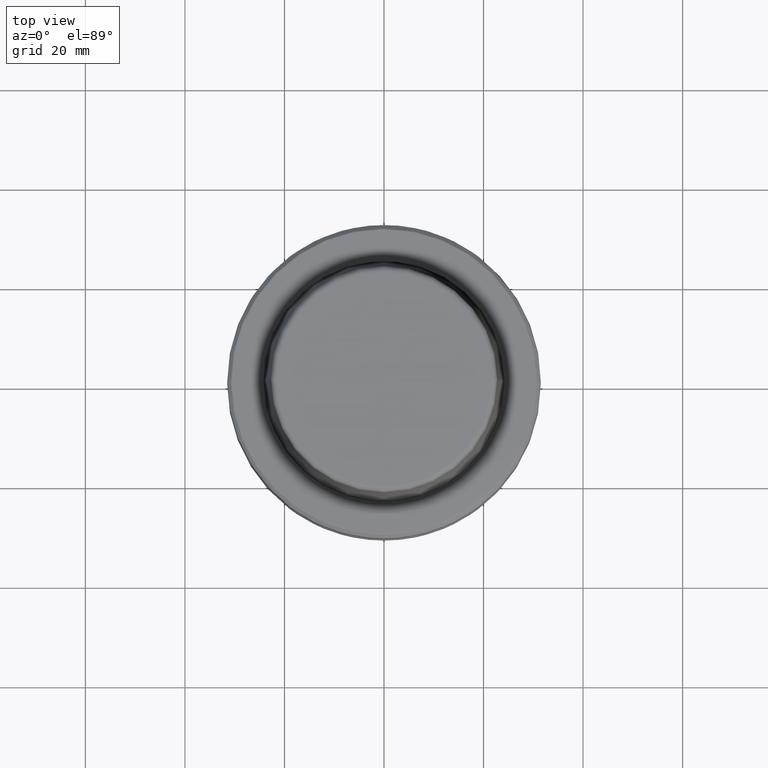
[diagram: clean part render]
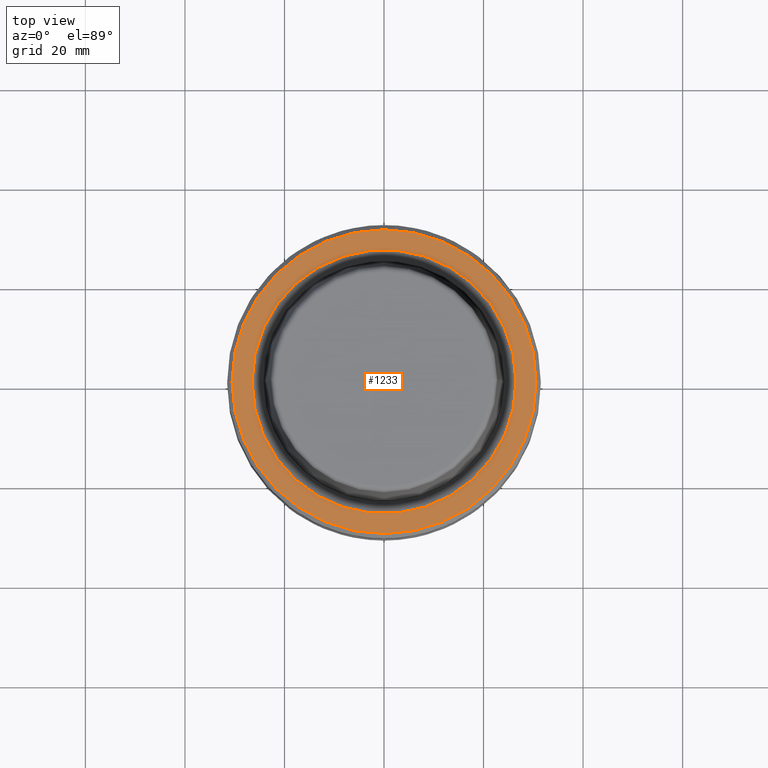
[diagram: same view with one face highlighted and labeled with its STEP entity id]
A machine part, top view. The second image highlights one B-rep face of the part: STEP entity #1233.
In plain terms, the highlighted planar face has unit normal (0, 0, -1).
Its self-contained STEP definition (entity closure, byte-faithful):
#36 = DIRECTION ( 'NONE',  ( 1.000000000000000000, 0.0000000000000000000, 0.0000000000000000000 ) ) ;
#52 = DIRECTION ( 'NONE',  ( -0.0000000000000000000, -0.0000000000000000000, 1.000000000000000000 ) ) ;
#69 = DIRECTION ( 'NONE',  ( 0.0000000000000000000, 0.0000000000000000000, -1.000000000000000000 ) ) ;
#74 = CARTESIAN_POINT ( 'NONE',  ( 30.53431457505076100, 0.0000000000000000000, 0.0000000000000000000 ) ) ;
#76 = CIRCLE ( 'NONE', #251, 30.53431457505076100 ) ;
#144 = DIRECTION ( 'NONE',  ( -0.0000000000000000000, -0.0000000000000000000, 1.000000000000000000 ) ) ;
#202 = EDGE_LOOP ( 'NONE', ( #760, #862 ) ) ;
#213 = FACE_OUTER_BOUND ( 'NONE', #202, .T. ) ;
#247 = AXIS2_PLACEMENT_3D ( 'NONE', #609, #69, #737 ) ;
#251 = AXIS2_PLACEMENT_3D ( 'NONE', #915, #52, #337 ) ;
#276 = EDGE_LOOP ( 'NONE', ( #810, #1024 ) ) ;
#292 = VERTEX_POINT ( 'NONE', #335 ) ;
#335 = CARTESIAN_POINT ( 'NONE',  ( 26.52499999999999900, 0.0000000000000000000, 0.0000000000000000000 ) ) ;
#336 = CARTESIAN_POINT ( 'NONE',  ( 0.0000000000000000000, 0.0000000000000000000, 0.0000000000000000000 ) ) ;
#337 = DIRECTION ( 'NONE',  ( 1.000000000000000000, 0.0000000000000000000, 0.0000000000000000000 ) ) ;
#350 = CARTESIAN_POINT ( 'NONE',  ( -26.52499999999999900, 3.248375634738354300E-015, 0.0000000000000000000 ) ) ;
#356 = CIRCLE ( 'NONE', #943, 30.53431457505076100 ) ;
#450 = CARTESIAN_POINT ( 'NONE',  ( 0.0000000000000000000, 0.0000000000000000000, 0.0000000000000000000 ) ) ;
#471 = CARTESIAN_POINT ( 'NONE',  ( -30.53431457505076100, 3.756694181974138600E-015, 0.0000000000000000000 ) ) ;
#486 = DIRECTION ( 'NONE',  ( 1.000000000000000000, 0.0000000000000000000, 0.0000000000000000000 ) ) ;
#536 = EDGE_CURVE ( 'NONE', #889, #882, #76, .T. ) ;
#609 = CARTESIAN_POINT ( 'NONE',  ( 0.0000000000000000000, 26.52499999999999900, -1.111307226797642000E-015 ) ) ;
#621 = DIRECTION ( 'NONE',  ( -0.0000000000000000000, -0.0000000000000000000, 1.000000000000000000 ) ) ;
#710 = CARTESIAN_POINT ( 'NONE',  ( 0.0000000000000000000, 0.0000000000000000000, 0.0000000000000000000 ) ) ;
#737 = DIRECTION ( 'NONE',  ( -1.000000000000000000, 0.0000000000000000000, -0.0000000000000000000 ) ) ;
#746 = CIRCLE ( 'NONE', #814, 26.52499999999999900 ) ;
#760 = ORIENTED_EDGE ( 'NONE', *, *, #1076, .T. ) ;
#810 = ORIENTED_EDGE ( 'NONE', *, *, #1214, .F. ) ;
#814 = AXIS2_PLACEMENT_3D ( 'NONE', #450, #945, #486 ) ;
#862 = ORIENTED_EDGE ( 'NONE', *, *, #536, .T. ) ;
#882 = VERTEX_POINT ( 'NONE', #74 ) ;
#889 = VERTEX_POINT ( 'NONE', #471 ) ;
#915 = CARTESIAN_POINT ( 'NONE',  ( 0.0000000000000000000, 0.0000000000000000000, 0.0000000000000000000 ) ) ;
#943 = AXIS2_PLACEMENT_3D ( 'NONE', #336, #621, #1206 ) ;
#944 = FACE_BOUND ( 'NONE', #276, .T. ) ;
#945 = DIRECTION ( 'NONE',  ( -0.0000000000000000000, -0.0000000000000000000, 1.000000000000000000 ) ) ;
#951 = PLANE ( 'NONE',  #247 ) ;
#1008 = AXIS2_PLACEMENT_3D ( 'NONE', #710, #144, #36 ) ;
#1024 = ORIENTED_EDGE ( 'NONE', *, *, #1072, .F. ) ;
#1058 = CIRCLE ( 'NONE', #1008, 26.52499999999999900 ) ;
#1071 = VERTEX_POINT ( 'NONE', #350 ) ;
#1072 = EDGE_CURVE ( 'NONE', #1071, #292, #1058, .T. ) ;
#1076 = EDGE_CURVE ( 'NONE', #882, #889, #356, .T. ) ;
#1206 = DIRECTION ( 'NONE',  ( 1.000000000000000000, 0.0000000000000000000, 0.0000000000000000000 ) ) ;
#1214 = EDGE_CURVE ( 'NONE', #292, #1071, #746, .T. ) ;
#1233 = ADVANCED_FACE ( 'NONE', ( #944, #213 ), #951, .F. ) ;